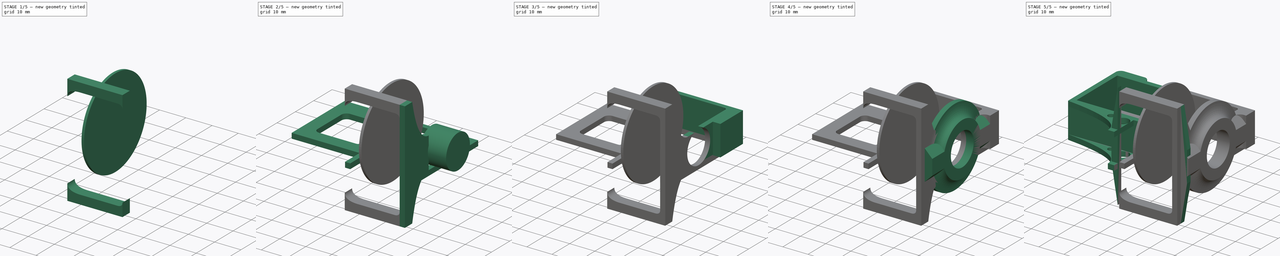
[diagram: build sequence overview — one tinted view per stage of 5, left to right]
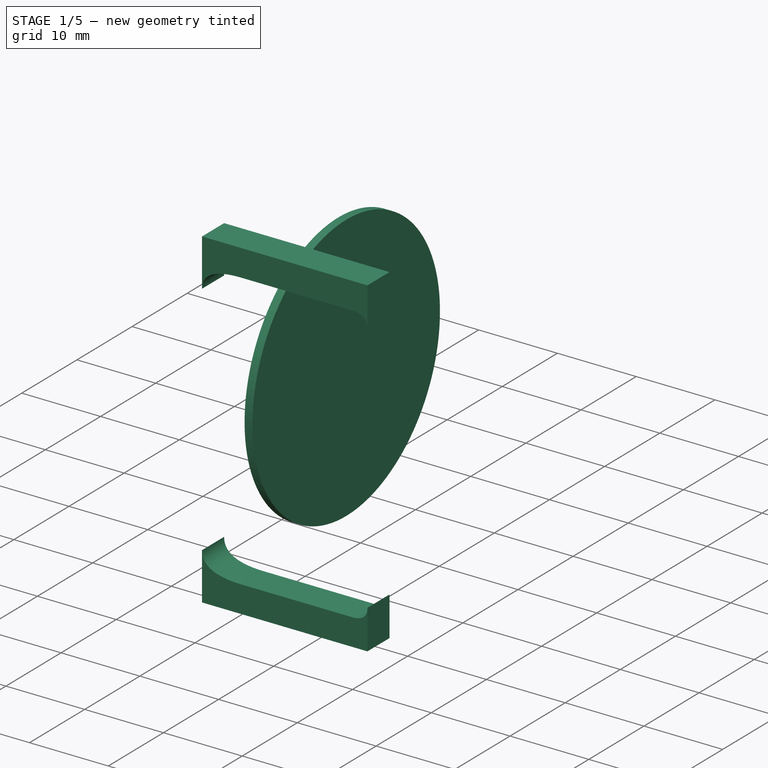
[diagram: stage 1 of 5 — iso view after this stage's code; geometry added in this stage tinted green]
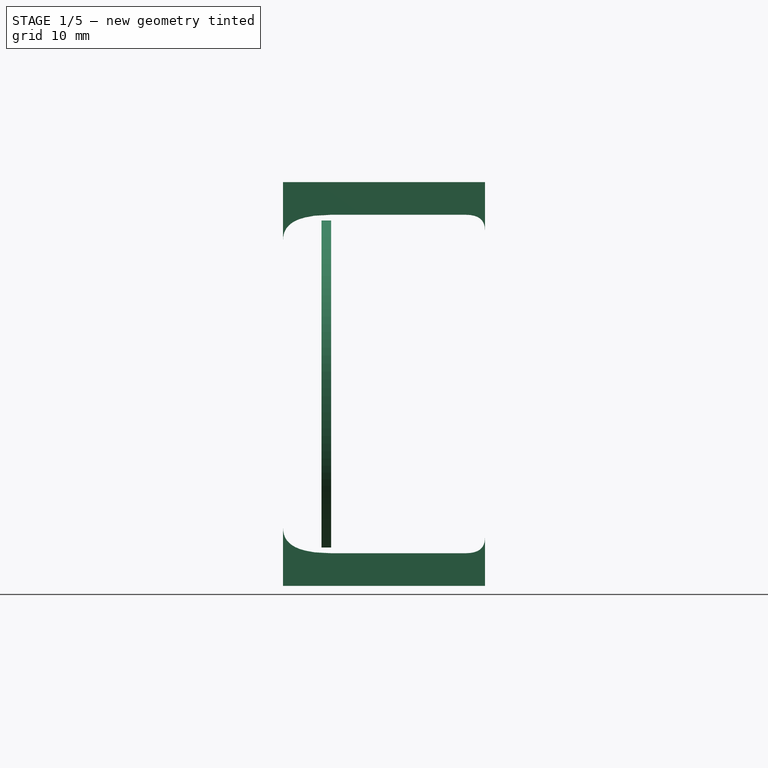
[diagram: stage 1 of 5 — front view after this stage's code; geometry added in this stage tinted green]
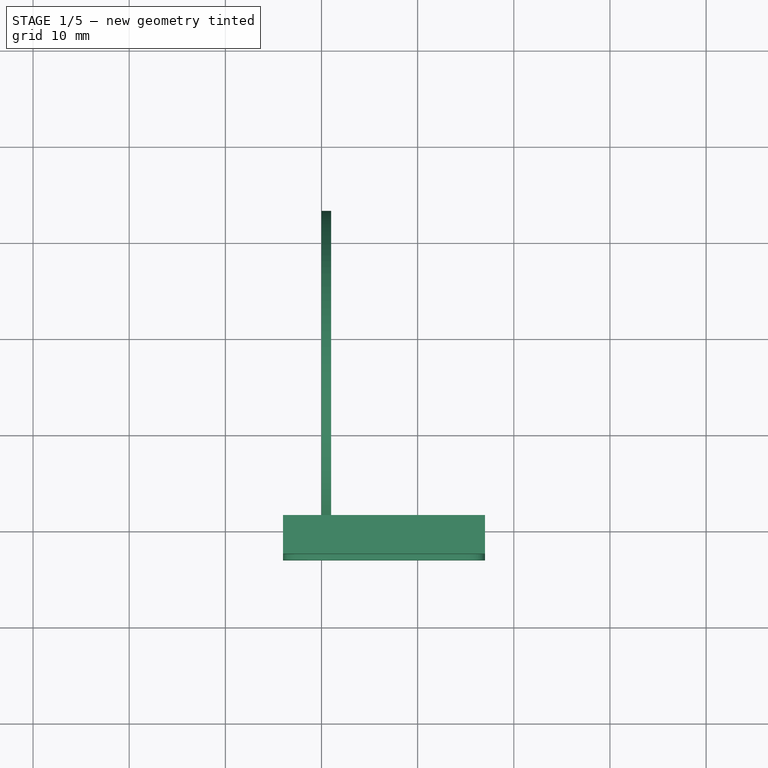
[diagram: stage 1 of 5 — top view after this stage's code; geometry added in this stage tinted green]
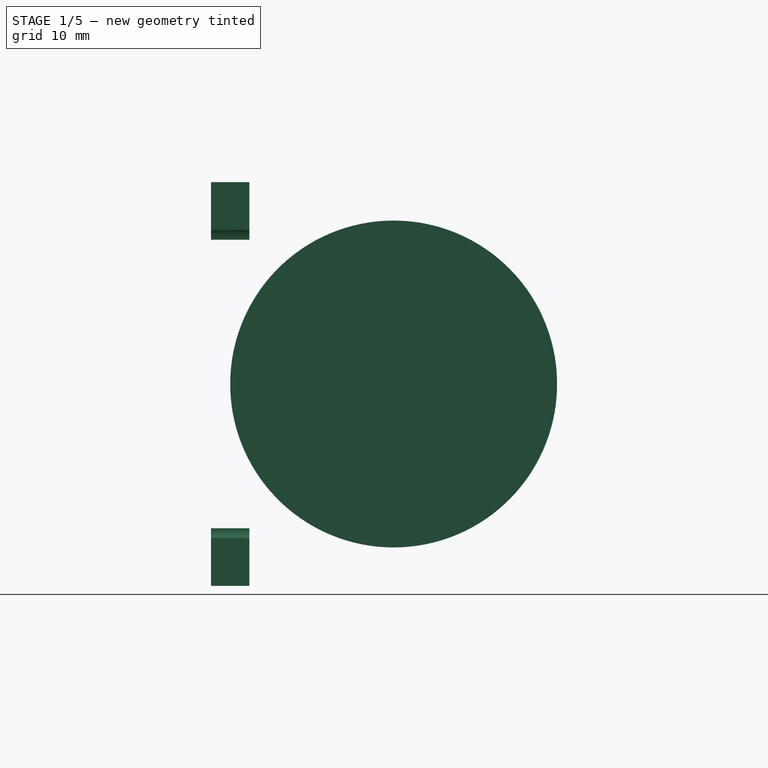
[diagram: stage 1 of 5 — right view after this stage's code; geometry added in this stage tinted green]
FCSTD DOCUMENT  (FreeCAD 0.20R0.20)
Label: 042
License: All rights reserved
LicenseURL: http://en.wikipedia.org/wiki/All_rights_reserved
objects: Sketcher::SketchObject×14, Part::Extrusion×12, Part::Cylinder×4, Part::Cut×4, Part::Chamfer×3, Part::Revolution×2, Part::Box×2
note: 41 computed .brp shape members not serialized (recipe doc carries the construction recipe); baked Part::Feature solids carry a one-line shape summary decoded from their .brp

FEATURE [Sketcher::SketchObject] Sketch012  label="pshasbbCrossBrace"
  FullyConstrained = true
  Placement = pos=(0,0,0) rot=(1,0,0;1.5708rad)
  sketch-geometry (17):
    g0: LineSegment StartX=26 StartY=29 StartZ=0 EndX=26 EndY=23 EndZ=0
    g1: LineSegment StartX=26 StartY=29 StartZ=0 EndX=31 EndY=29 EndZ=0
    g2: Circle CenterX=26 CenterY=23 CenterZ=0 NormalX=0 NormalY=0 NormalZ=1 AngleXU=0 Radius=1
    g3: Circle CenterX=26 CenterY=25.6 CenterZ=0 NormalX=0 NormalY=0 NormalZ=1 AngleXU=0 Radius=1
    g4: Circle CenterX=31 CenterY=25.6 CenterZ=0 NormalX=0 NormalY=0 NormalZ=1 AngleXU=0 Radius=1
    g5: BSplineCurve PolesCount=3 KnotsCount=2 Degree=2 IsPeriodic=0
    g6: GeomPoint X=26 Y=23 Z=0
    g7: GeomPoint X=31 Y=25.6 Z=0
    g8: LineSegment StartX=31 StartY=29 StartZ=0 EndX=47 EndY=29 EndZ=0
    g9: LineSegment StartX=47 StartY=29 StartZ=0 EndX=47 EndY=24 EndZ=0
    g10: LineSegment StartX=31 StartY=25.6 StartZ=0 EndX=45 EndY=25.6 EndZ=0
    g11: Circle CenterX=47 CenterY=24 CenterZ=0 NormalX=0 NormalY=0 NormalZ=1 AngleXU=0 Radius=1
    g12: Circle CenterX=47 CenterY=25.6 CenterZ=0 NormalX=0 NormalY=0 NormalZ=1 AngleXU=0 Radius=1
    g13: Circle CenterX=45 CenterY=25.6 CenterZ=0 NormalX=0 NormalY=0 NormalZ=1 AngleXU=0 Radius=1
    g14: BSplineCurve PolesCount=3 KnotsCount=2 Degree=2 IsPeriodic=0
    g15: GeomPoint X=47 Y=24 Z=0
    g16: GeomPoint X=45 Y=25.6 Z=0
  constraints (36):
    c: Vertical(g0)
    c: Distance(g0) = 6
    c: Horizontal(g1)
    c: Distance(g1) = 5
    c: PointOnObject(g3,g0)
    c: Weight(g2) = 1
    c: Coincident(g5,g0)
    c: Equal(g2,g3)
    c: Equal(g2,g4)
    c: InternalAlignment(g2,g5)
    c: InternalAlignment(g3,g5)
    c: InternalAlignment(g4,g5)
    c: InternalAlignment(g6,g5)
    c: InternalAlignment(g7,g5)
    c: Coincident(g8,g1)
    c: Horizontal(g8)
    c: Distance(g8) = 16
    c: Coincident(g9,g8)
    c: Vertical(g9)
    c: Distance(g9) = 5
    c: Horizontal(g10)
    c: Distance(g10) = 14
    c: PointOnObject(g12,g9)
    c: Weight(g11) = 1
    c: Coincident(g14,g9)
    c: Equal(g11,g12)
    c: Equal(g11,g13)
    c: Coincident(g14,g10)
    c: InternalAlignment(g11,g14)
    c: InternalAlignment(g12,g14)
    c: InternalAlignment(g13,g14)
    c: InternalAlignment(g15,g14)
    c: InternalAlignment(g16,g14)
    c: Block(g10)
    c: Block(g14)
    c: Block(g5)
FEATURE [Part::Extrusion] Extrude010  label="pshasbbCrossBrace001"
  Base = -> Sketch012
  Dir = (0,-1,-3e-16)
  DirMode = 2
  FaceMakerClass = Part::FaceMakerBullseye
  LengthFwd = 4
  LengthRev = 0
  Placement = pos=(0,-9,0) rot=(0,0,1;0rad)
  Solid = true
  Symmetric = false
FEATURE [Sketcher::SketchObject] Sketch013  label="pshasbbCrossBrace003"
  FullyConstrained = true
  Placement = pos=(0,0,0) rot=(1,0,0;1.5708rad)
  sketch-geometry (17):
    g0: LineSegment StartX=26 StartY=29 StartZ=0 EndX=26 EndY=23 EndZ=0
    g1: LineSegment StartX=26 StartY=29 StartZ=0 EndX=31 EndY=29 EndZ=0
    g2: Circle CenterX=26 CenterY=23 CenterZ=0 NormalX=0 NormalY=0 NormalZ=1 AngleXU=0 Radius=1
    g3: Circle CenterX=26 CenterY=25.6 CenterZ=0 NormalX=0 NormalY=0 NormalZ=1 AngleXU=0 Radius=1
    g4: Circle CenterX=31 CenterY=25.6 CenterZ=0 NormalX=0 NormalY=0 NormalZ=1 AngleXU=0 Radius=1
    g5: BSplineCurve PolesCount=3 KnotsCount=2 Degree=2 IsPeriodic=0
    g6: GeomPoint X=26 Y=23 Z=0
    g7: GeomPoint X=31 Y=25.6 Z=0
    g8: LineSegment StartX=31 StartY=29 StartZ=0 EndX=47 EndY=29 EndZ=0
    g9: LineSegment StartX=47 StartY=29 StartZ=0 EndX=47 EndY=24 EndZ=0
    g10: LineSegment StartX=31 StartY=25.6 StartZ=0 EndX=45 EndY=25.6 EndZ=0
    g11: Circle CenterX=47 CenterY=24 CenterZ=0 NormalX=0 NormalY=0 NormalZ=1 AngleXU=0 Radius=1
    g12: Circle CenterX=47 CenterY=25.6 CenterZ=0 NormalX=0 NormalY=0 NormalZ=1 AngleXU=0 Radius=1
    g13: Circle CenterX=45 CenterY=25.6 CenterZ=0 NormalX=0 NormalY=0 NormalZ=1 AngleXU=0 Radius=1
    g14: BSplineCurve PolesCount=3 KnotsCount=2 Degree=2 IsPeriodic=0
    g15: GeomPoint X=47 Y=24 Z=0
    g16: GeomPoint X=45 Y=25.6 Z=0
  constraints (36):
    c: Vertical(g0)
    c: Distance(g0) = 6
    c: Horizontal(g1)
    c: Distance(g1) = 5
    c: PointOnObject(g3,g0)
    c: Weight(g2) = 1
    c: Coincident(g5,g0)
    c: Equal(g2,g3)
    c: Equal(g2,g4)
    c: InternalAlignment(g2,g5)
    c: InternalAlignment(g3,g5)
    c: InternalAlignment(g4,g5)
    c: InternalAlignment(g6,g5)
    c: InternalAlignment(g7,g5)
    c: Coincident(g8,g1)
    c: Horizontal(g8)
    c: Distance(g8) = 16
    c: Coincident(g9,g8)
    c: Vertical(g9)
    c: Distance(g9) = 5
    c: Horizontal(g10)
    c: Distance(g10) = 14
    c: PointOnObject(g12,g9)
    c: Weight(g11) = 1
    c: Coincident(g14,g9)
    c: Equal(g11,g12)
    c: Equal(g11,g13)
    c: Coincident(g14,g10)
    c: InternalAlignment(g11,g14)
    c: InternalAlignment(g12,g14)
    c: InternalAlignment(g13,g14)
    c: InternalAlignment(g15,g14)
    c: InternalAlignment(g16,g14)
    c: Block(g10)
    c: Block(g14)
    c: Block(g5)
FEATURE [Part::Extrusion] Extrude011  label="pshasbbCrossBrace002"
  Base = -> Sketch013
  Dir = (0,-1,-3e-16)
  DirMode = 2
  FaceMakerClass = Part::FaceMakerBullseye
  LengthFwd = 4
  LengthRev = 0
  Placement = pos=(0,-13,16) rot=(1,0,0;3.14159rad)
  Solid = true
  Symmetric = false
FEATURE [Sketcher::SketchObject] Sketch014  label="pully003"
  FullyConstrained = true
  sketch-geometry (15):
    g0: LineSegment StartX=0 StartY=0 StartZ=0 EndX=15 EndY=0 EndZ=0
    g1: LineSegment StartX=0 StartY=0 StartZ=0 EndX=0 EndY=17 EndZ=0
    g2: LineSegment StartX=0 StartY=17 StartZ=0 EndX=0.8 EndY=17 EndZ=0
    g3: LineSegment StartX=15 StartY=17 StartZ=0 EndX=14.2 EndY=17 EndZ=0
    g4: LineSegment StartX=15 StartY=17 StartZ=0 EndX=15 EndY=2.8 EndZ=0
    g5: LineSegment StartX=15 StartY=0 StartZ=0 EndX=21 EndY=0 EndZ=0
    g6: LineSegment StartX=15 StartY=2.8 StartZ=0 EndX=21 EndY=2.8 EndZ=0
    g7: LineSegment StartX=21 StartY=2.8 StartZ=0 EndX=21 EndY=0 EndZ=0
    g8: LineSegment StartX=0 StartY=0 StartZ=0 EndX=7.5 EndY=0 EndZ=0
    g9: Circle CenterX=0.8 CenterY=17 CenterZ=0 NormalX=0 NormalY=0 NormalZ=1 AngleXU=0 Radius=1
    g10: Circle CenterX=7.5 CenterY=-9 CenterZ=0 NormalX=0 NormalY=0 NormalZ=1 AngleXU=0 Radius=1
    g11: Circle CenterX=14.2 CenterY=17 CenterZ=0 NormalX=0 NormalY=0 NormalZ=1 AngleXU=0 Radius=1
    g12: BSplineCurve PolesCount=3 KnotsCount=2 Degree=2 IsPeriodic=0
    g13: GeomPoint X=0.8 Y=17 Z=0
    g14: GeomPoint X=14.2 Y=17 Z=0
  constraints (38):
    c: Coincident(g0,g-1)
    c: PointOnObject(g0,g-1)
    c: Distance(g0) = 15
    c: Coincident(g1,g0)
    c: Vertical(g1)
    c: Distance(g1) = 17
    c: Coincident(g2,g1)
    c: Horizontal(g2)
    c: Distance(g2) = 0.8
    c: Horizontal(g3)
    c: Distance(g3) = 0.8
    c: Coincident(g4,g3)
    c: Vertical(g4)
    c: Coincident(g5,g0)
    c: Horizontal(g5)
    c: Block(g4)
    c: Coincident(g6,g4)
    c: Horizontal(g6)
    c: Distance(g6) = 6
    c: Distance(g5) = 6
    c: Coincident(g7,g6)
    c: Coincident(g7,g5)
    c: Vertical(g7)
    c: Distance(g7) = 2.8
    c: Horizontal(g8)
    c: Distance(g8) = 7.5
    c: Coincident(g8,g0)
    c: Weight(g9) = 1
    c: Coincident(g12,g2)
    c: Equal(g9,g10)
    c: Equal(g9,g11)
    c: Coincident(g12,g3)
    c: InternalAlignment(g9,g12)
    c: InternalAlignment(g10,g12)
    c: InternalAlignment(g11,g12)
    c: InternalAlignment(g13,g12)
    c: InternalAlignment(g14,g12)
    c: Block(g12)
FEATURE [Part::Revolution] Revolve002  label="pully"
  Angle = 360
  Axis = (1,0,0)
  Base = (0,0,0)
  FaceMakerClass = Part::FaceMakerBullseye
  Placement = pos=(31,6,8) rot=(0,0,1;0rad)
  Solid = false
  Source = -> Sketch014
  Symmetric = false
FEATURE [Part::Chamfer] Chamfer  label="pully004"
  Base = -> Revolve002
  Edges = 2 edges r=0.5: [Edge2,Edge8]
FEATURE [Sketcher::SketchObject] Sketch016
  FullyConstrained = true
  Placement = pos=(0,0,0) rot=(0.57735,0.57735,0.57735;2.0944rad)
  sketch-geometry (6):
    g0: Circle CenterX=0 CenterY=0 CenterZ=0 NormalX=0 NormalY=0 NormalZ=1 AngleXU=0 Radius=2.36
    g1: Circle CenterX=0 CenterY=6.5 CenterZ=0 NormalX=0 NormalY=0 NormalZ=1 AngleXU=0 Radius=2
    g2: Circle CenterX=0 CenterY=-6.5 CenterZ=0 NormalX=0 NormalY=0 NormalZ=1 AngleXU=0 Radius=2
    g3: Circle CenterX=0 CenterY=0 CenterZ=0 NormalX=0 NormalY=0 NormalZ=1 AngleXU=0 Radius=11
    g4: Circle CenterX=-6.5 CenterY=0 CenterZ=0 NormalX=0 NormalY=0 NormalZ=1 AngleXU=0 Radius=2
    g5: Circle CenterX=6.5 CenterY=0 CenterZ=0 NormalX=0 NormalY=0 NormalZ=1 AngleXU=0 Radius=2
  constraints (7):
    c: Block(g0)
    c: Block(g2)
    c: Block(g1)
    c: Coincident(g3,g0)
    c: Block(g3)
    c: Block(g5)
    c: Block(g4)
FEATURE [Part::Extrusion] Extrude012  label="removeToCreatePullyServoMount"
  Base = -> Sketch016
  Dir = (1,0,0)
  DirMode = 2
  FaceMakerClass = Part::FaceMakerBullseye
  LengthFwd = 1
  LengthRev = 0
  Placement = pos=(29.99,6,8) rot=(0,0,1;0rad)
  Solid = true
  Symmetric = false
FEATURE [Part::Cylinder] Cylinder003  label="Cylinder"
  Angle = 360
  AttacherType = Attacher::AttachEngine3D
  FirstAngle = 0
  Height = 1
  Placement = pos=(30,6,8) rot=(0,1,0;1.5708rad)
  Radius = 17
  SecondAngle = 0
FEATURE [Part::Cut] Cut003
  Base = -> Cylinder003
  Tool = -> Extrude012
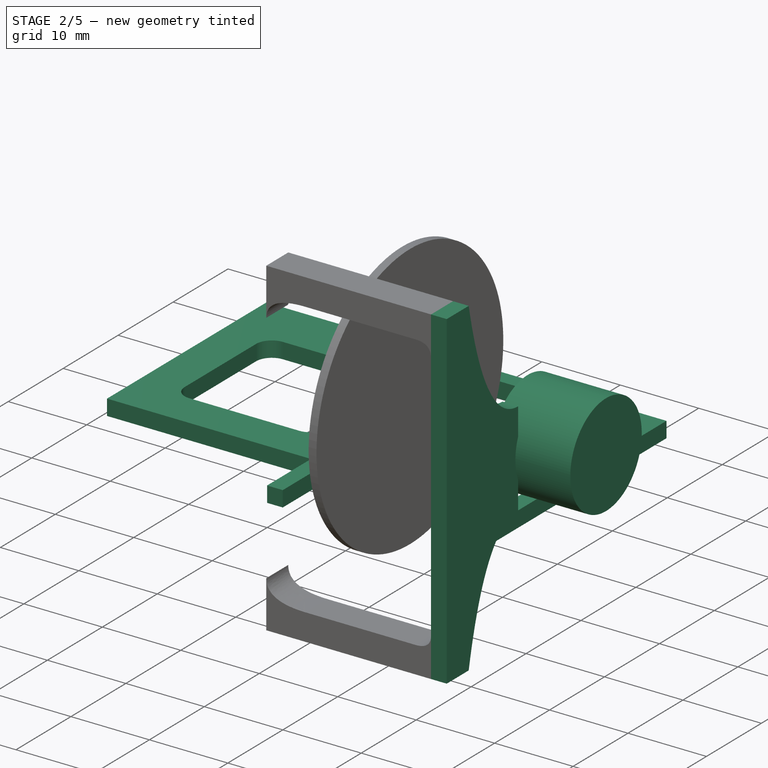
[diagram: stage 2 of 5 — iso view after this stage's code; geometry added in this stage tinted green]
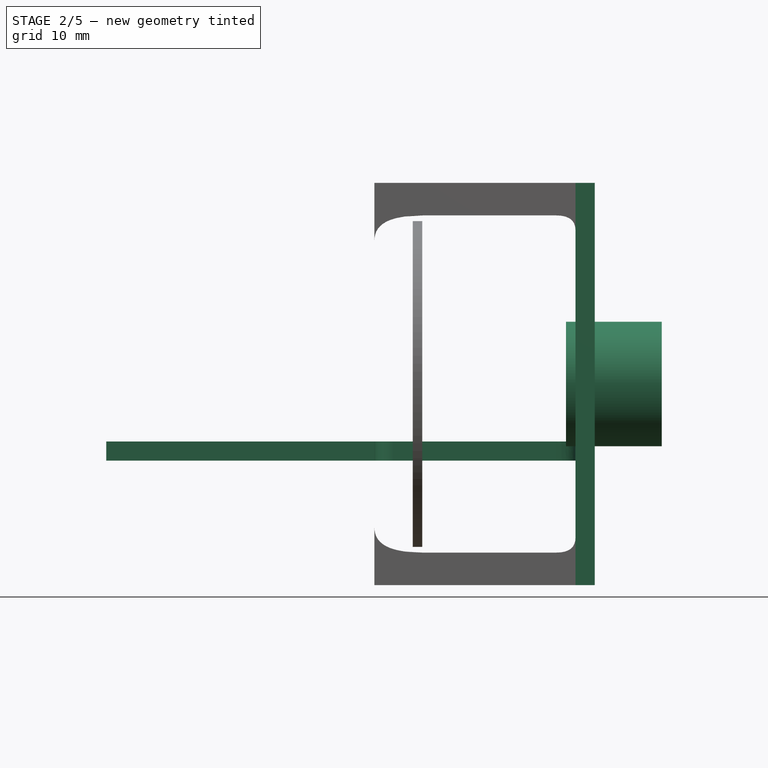
[diagram: stage 2 of 5 — front view after this stage's code; geometry added in this stage tinted green]
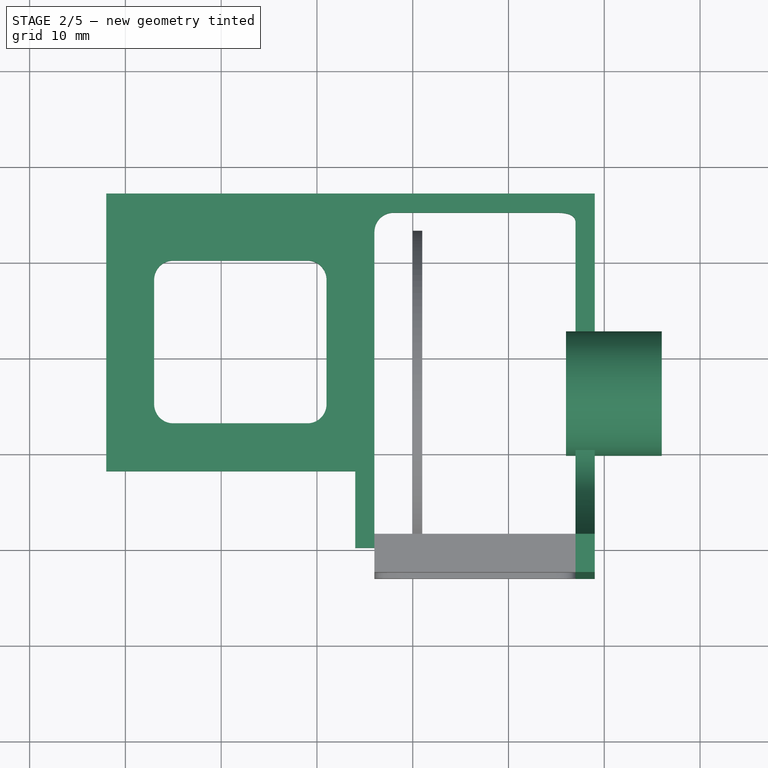
[diagram: stage 2 of 5 — top view after this stage's code; geometry added in this stage tinted green]
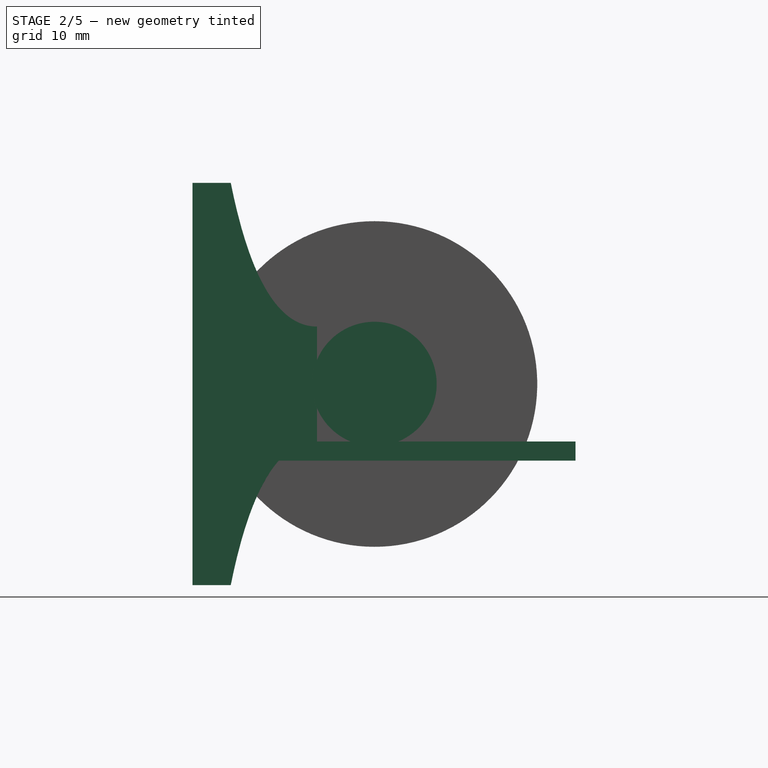
[diagram: stage 2 of 5 — right view after this stage's code; geometry added in this stage tinted green]
FEATURE [Sketcher::SketchObject] Sketch001  label="servoHolderBase"
  FullyConstrained = true
  sketch-geometry (27):
    g0: LineSegment StartX=-2 StartY=-2 StartZ=0 EndX=-2 EndY=25 EndZ=0
    g1: LineSegment StartX=-2 StartY=25 StartZ=0 EndX=-2 EndY=27 EndZ=0
    g2: LineSegment StartX=49 StartY=-13 StartZ=0 EndX=49 EndY=27 EndZ=0
    g3: Circle CenterX=47 CenterY=24 CenterZ=0 NormalX=0 NormalY=0 NormalZ=1 AngleXU=0 Radius=1
    g4: Circle CenterX=47 CenterY=25 CenterZ=0 NormalX=0 NormalY=0 NormalZ=1 AngleXU=0 Radius=1
    g5: Circle CenterX=45 CenterY=25 CenterZ=0 NormalX=0 NormalY=0 NormalZ=1 AngleXU=0 Radius=1
    g6: BSplineCurve PolesCount=3 KnotsCount=2 Degree=2 IsPeriodic=0
    g7: GeomPoint X=47 Y=24 Z=0
    g8: GeomPoint X=45 Y=25 Z=0
    g9: ArcOfCircle CenterX=28 CenterY=23 CenterZ=0 NormalX=0 NormalY=0 NormalZ=1 AngleXU=0 Radius=2 StartAngle=1.5708 EndAngle=3.14159
    g10: LineSegment StartX=45 StartY=25 StartZ=0 EndX=28 EndY=25 EndZ=0
    g11: LineSegment StartX=47 StartY=24 StartZ=0 EndX=47 EndY=-13 EndZ=0
    g12: LineSegment StartX=49 StartY=27 StartZ=0 EndX=-2 EndY=27 EndZ=0
    g13: LineSegment StartX=24 StartY=-2 StartZ=0 EndX=-2 EndY=-2 EndZ=0
    g14: LineSegment StartX=47 StartY=-13 StartZ=0 EndX=49 EndY=-13 EndZ=0
    g15: LineSegment StartX=26 StartY=2 StartZ=0 EndX=26 EndY=23 EndZ=0
    g16: ArcOfCircle CenterX=5 CenterY=18 CenterZ=0 NormalX=0 NormalY=0 NormalZ=1 AngleXU=0 Radius=2 StartAngle=1.5708 EndAngle=3.14159
    g17: ArcOfCircle CenterX=5 CenterY=5 CenterZ=0 NormalX=0 NormalY=0 NormalZ=1 AngleXU=0 Radius=2 StartAngle=3.14159 EndAngle=4.71239
    g18: ArcOfCircle CenterX=19 CenterY=5 CenterZ=0 NormalX=0 NormalY=0 NormalZ=1 AngleXU=0 Radius=2 StartAngle=4.71239 EndAngle=6.28319
    g19: ArcOfCircle CenterX=19 CenterY=18 CenterZ=0 NormalX=0 NormalY=0 NormalZ=1 AngleXU=0 Radius=2 StartAngle=0 EndAngle=1.5708
    g20: LineSegment StartX=3 StartY=18 StartZ=0 EndX=3 EndY=5 EndZ=0
    g21: LineSegment StartX=5 StartY=3 StartZ=0 EndX=19 EndY=3 EndZ=0
    g22: LineSegment StartX=21 StartY=5 StartZ=0 EndX=21 EndY=18 EndZ=0
    g23: LineSegment StartX=5 StartY=20 StartZ=0 EndX=19 EndY=20 EndZ=0
    g24: LineSegment StartX=26 StartY=2 StartZ=0 EndX=26 EndY=-10 EndZ=0
    g25: LineSegment StartX=26 StartY=-10 StartZ=0 EndX=24 EndY=-10 EndZ=0
    g26: LineSegment StartX=24 StartY=-10 StartZ=0 EndX=24 EndY=-2 EndZ=0
  constraints (61):
    c: Vertical(g0)
    c: Distance(g0) = 27
    c: Coincident(g1,g0)
    c: Vertical(g1)
    c: Distance(g1) = 2
    c: Vertical(g2)
    c: Block(g2)
    c: Weight(g3) = 1
    c: Equal(g3,g4)
    c: Equal(g3,g5)
    c: InternalAlignment(g3,g6)
    c: InternalAlignment(g4,g6)
    c: InternalAlignment(g5,g6)
    c: InternalAlignment(g7,g6)
    c: InternalAlignment(g8,g6)
    c: Block(g6)
    c: Block(g9)
    c: Coincident(g10,g6)
    c: Coincident(g10,g9)
    c: Horizontal(g10)
    c: Coincident(g11,g6)
    c: Vertical(g11)
    c: Coincident(g12,g2)
    c: Coincident(g12,g1)
    c: Horizontal(g12)
    c: Coincident(g13,g0)
    c: Horizontal(g13)
    c: Block(g13)
    c: Block(g11)
    c: Coincident(g14,g11)
    c: Coincident(g14,g2)
    c: Horizontal(g14)
    c: Coincident(g15,g9)
    c: Vertical(g15)
    c: Block(g16)
    c: Coincident(g20,g16)
    c: Coincident(g20,g17)
    c: Vertical(g20)
    c: Coincident(g21,g17)
    c: Coincident(g21,g18)
    c: Horizontal(g21)
    c: Coincident(g22,g18)
    c: Coincident(g22,g19)
    c: Vertical(g22)
    c: Coincident(g23,g16)
    c: Coincident(g23,g19)
    c: Horizontal(g23)
    c: Block(g18)
    c: Block(g17)
    c: Block(g22)
    c: Block(g23)
    c: Block(g19)
    c: Vertical(g24)
    c: Block(g15)
    c: Block(g24)
    c: Coincident(g25,g24)
    c: Horizontal(g25)
    c: Distance(g25) = 2
    c: Coincident(g26,g25)
    c: Vertical(g26)
    c: Coincident(g13,g26)
FEATURE [Part::Extrusion] Extrude001  label="servoHolderBase001"
  Base = -> Sketch001
  Dir = (0,0,1)
  DirMode = 2
  FaceMakerClass = Part::FaceMakerBullseye
  LengthFwd = 2
  LengthRev = 0
  Solid = true
  Symmetric = false
FEATURE [Sketcher::SketchObject] Sketch004  label="pullyServoHolderAndSprintBarrierBrace"
  FullyConstrained = true
  Placement = pos=(0,0,0) rot=(0.57735,0.57735,0.57735;2.0944rad)
  sketch-geometry (19):
    g0: LineSegment StartX=-13 StartY=25 StartZ=0 EndX=-13 EndY=-9 EndZ=0
    g1: LineSegment StartX=0 StartY=14 StartZ=0 EndX=0 EndY=8 EndZ=0
    g2: LineSegment StartX=0 StartY=8 StartZ=0 EndX=0 EndY=2 EndZ=0
    g3: LineSegment StartX=-13 StartY=-9 StartZ=0 EndX=-13 EndY=-13 EndZ=0
    g4: LineSegment StartX=-13 StartY=25 StartZ=0 EndX=-13 EndY=29 EndZ=0
    g5: LineSegment StartX=-13 StartY=29 StartZ=0 EndX=-9 EndY=29 EndZ=0
    g6: LineSegment StartX=-13 StartY=-13 StartZ=0 EndX=-9 EndY=-13 EndZ=0
    g7: Circle CenterX=0 CenterY=2 CenterZ=0 NormalX=0 NormalY=0 NormalZ=1 AngleXU=0 Radius=1
    g8: Circle CenterX=-6 CenterY=2 CenterZ=0 NormalX=0 NormalY=0 NormalZ=1 AngleXU=0 Radius=1
    g9: Circle CenterX=-9 CenterY=-13 CenterZ=0 NormalX=0 NormalY=0 NormalZ=1 AngleXU=0 Radius=1
    g10: BSplineCurve PolesCount=3 KnotsCount=2 Degree=2 IsPeriodic=0
    g11: GeomPoint X=0 Y=2 Z=0
    g12: GeomPoint X=-9 Y=-13 Z=0
    g13: Circle CenterX=0 CenterY=14 CenterZ=0 NormalX=0 NormalY=0 NormalZ=1 AngleXU=0 Radius=1
    g14: Circle CenterX=-6 CenterY=14 CenterZ=0 NormalX=0 NormalY=0 NormalZ=1 AngleXU=0 Radius=1
    g15: Circle CenterX=-9 CenterY=29 CenterZ=0 NormalX=0 NormalY=0 NormalZ=1 AngleXU=0 Radius=1
    g16: BSplineCurve PolesCount=3 KnotsCount=2 Degree=2 IsPeriodic=0
    g17: GeomPoint X=0 Y=14 Z=0
    g18: GeomPoint X=-9 Y=29 Z=0
  constraints (43):
    c: Vertical(g0)
    c: Distance(g0) = 34
    c: Vertical(g1)
    c: Distance(g1) = 6
    c: Coincident(g2,g1)
    c: Vertical(g2)
    c: Distance(g2) = 6
    c: Block(g0)
    c: Block(g2)
    c: Coincident(g3,g0)
    c: Vertical(g3)
    c: Distance(g3) = 4
    c: Coincident(g4,g0)
    c: Vertical(g4)
    c: Distance(g4) = 4
    c: Coincident(g5,g4)
    c: Horizontal(g5)
    c: Coincident(g6,g3)
    c: Horizontal(g6)
    c: Distance(g6) = 4
    c: Distance(g5) = 4
    c: Weight(g7) = 1
    c: Coincident(g10,g2)
    c: Equal(g7,g8)
    c: Equal(g7,g9)
    c: Coincident(g10,g6)
    c: InternalAlignment(g7,g10)
    c: InternalAlignment(g8,g10)
    c: InternalAlignment(g9,g10)
    c: InternalAlignment(g11,g10)
    c: InternalAlignment(g12,g10)
    c: Weight(g13) = 1
    c: Coincident(g16,g1)
    c: Equal(g13,g14)
    c: Equal(g13,g15)
    c: Coincident(g16,g5)
    c: InternalAlignment(g13,g16)
    c: InternalAlignment(g14,g16)
    c: InternalAlignment(g15,g16)
    c: InternalAlignment(g17,g16)
    c: InternalAlignment(g18,g16)
    c: Block(g16)
    c: Block(g10)
FEATURE [Part::Extrusion] Extrude003  label="pullyServoHolderAndSprintBarrierBrace001"
  Base = -> Sketch004
  Dir = (1,0,0)
  DirMode = 2
  FaceMakerClass = Part::FaceMakerBullseye
  LengthFwd = 2
  LengthRev = 0
  Placement = pos=(47,0,0) rot=(0,0,1;0rad)
  Solid = true
  Symmetric = false
FEATURE [Part::Cylinder] Cylinder001  label="removeToCreateHoleForBearing001"
  Angle = 360
  AttacherType = Attacher::AttachEngine3D
  FirstAngle = 0
  Height = 10
  Placement = pos=(46,6,8) rot=(0,1,0;1.5708rad)
  Radius = 6.5
  SecondAngle = 0
FEATURE [Part::Cylinder] Cylinder002  label="removeToCreateHoleForBearing002"
  Angle = 360
  AttacherType = Attacher::AttachEngine3D
  FirstAngle = 0
  Height = 10
  Placement = pos=(46,6,8) rot=(0,1,0;1.5708rad)
  Radius = 6.5
  SecondAngle = 0
FEATURE [Part::Cut] Cut002  label="pullyServoHolderAndSprintBarrierBrace004"
  Base = -> Extrude003
  Tool = -> Cylinder002
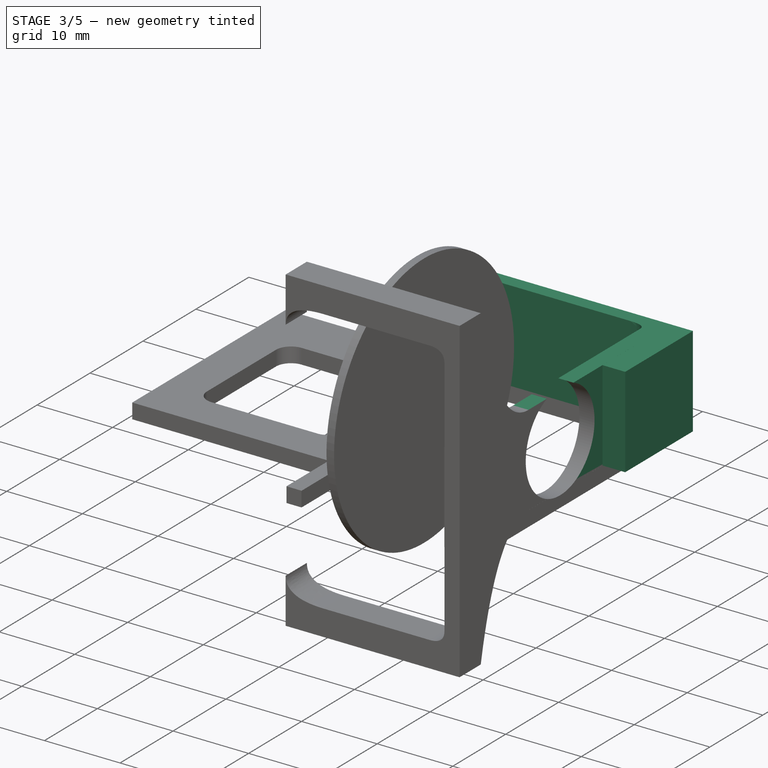
[diagram: stage 3 of 5 — iso view after this stage's code; geometry added in this stage tinted green]
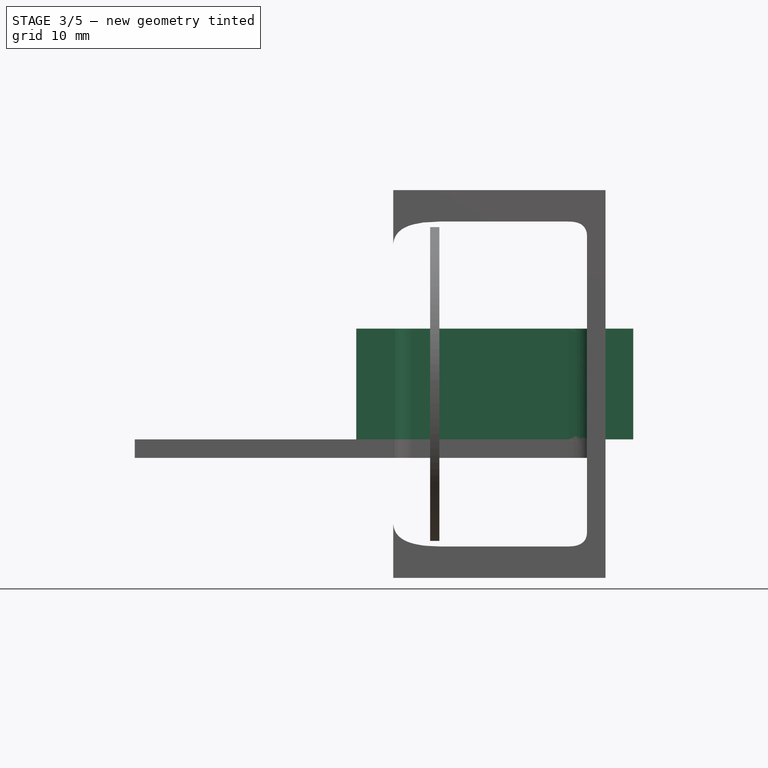
[diagram: stage 3 of 5 — front view after this stage's code; geometry added in this stage tinted green]
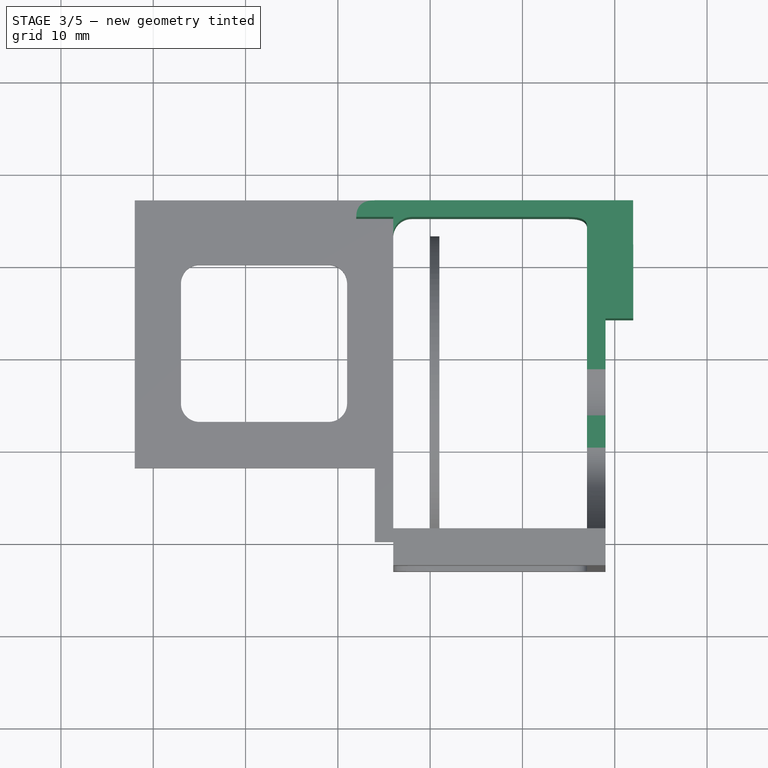
[diagram: stage 3 of 5 — top view after this stage's code; geometry added in this stage tinted green]
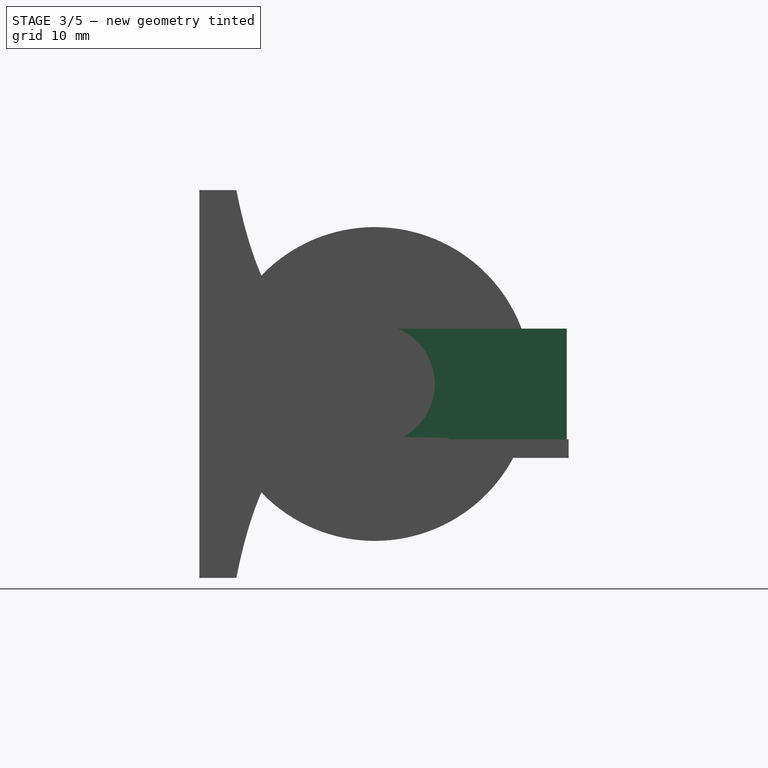
[diagram: stage 3 of 5 — right view after this stage's code; geometry added in this stage tinted green]
FEATURE [Sketcher::SketchObject] Sketch003  label="pullyHolderAndSprintBarrier"
  FullyConstrained = true
  sketch-geometry (23):
    g0: Circle CenterX=21.9972 CenterY=25 CenterZ=0 NormalX=0 NormalY=0 NormalZ=1 AngleXU=0 Radius=1
    g1: Circle CenterX=21.9972 CenterY=26.8 CenterZ=0 NormalX=0 NormalY=0 NormalZ=1 AngleXU=0 Radius=1
    g2: Circle CenterX=23.9972 CenterY=26.8 CenterZ=0 NormalX=0 NormalY=0 NormalZ=1 AngleXU=0 Radius=1
    g3: BSplineCurve PolesCount=3 KnotsCount=2 Degree=2 IsPeriodic=0
    g4: GeomPoint X=21.9972 Y=25 Z=0
    g5: GeomPoint X=23.9972 Y=26.8 Z=0
    g6: ArcOfCircle CenterX=27.9972 CenterY=23 CenterZ=0 NormalX=0 NormalY=0 NormalZ=1 AngleXU=0 Radius=2 StartAngle=1.5708 EndAngle=3.14159
    g7: Circle CenterX=44.9972 CenterY=25 CenterZ=0 NormalX=0 NormalY=0 NormalZ=1 AngleXU=0 Radius=1
    g8: Circle CenterX=46.9972 CenterY=25 CenterZ=0 NormalX=0 NormalY=0 NormalZ=1 AngleXU=0 Radius=1
    g9: Circle CenterX=46.9972 CenterY=24 CenterZ=0 NormalX=0 NormalY=0 NormalZ=1 AngleXU=0 Radius=1
    g10: BSplineCurve PolesCount=3 KnotsCount=2 Degree=2 IsPeriodic=0
    g11: GeomPoint X=44.9972 Y=25 Z=0
    g12: GeomPoint X=46.9972 Y=24 Z=0
    g13: LineSegment StartX=46.9972 StartY=-13 StartZ=0 EndX=48.9972 EndY=-13 EndZ=0
    g14: LineSegment StartX=23.9972 StartY=26.8 StartZ=0 EndX=51.9972 EndY=26.8 EndZ=0
    g15: LineSegment StartX=21.9972 StartY=25 StartZ=0 EndX=25.9972 EndY=25 EndZ=0
    g16: LineSegment StartX=25.9972 StartY=25 StartZ=0 EndX=25.9972 EndY=23 EndZ=0
    g17: LineSegment StartX=44.9972 StartY=25 StartZ=0 EndX=27.9972 EndY=25 EndZ=0
    g18: LineSegment StartX=46.9972 StartY=24 StartZ=0 EndX=46.9972 EndY=-13 EndZ=0
    g19: LineSegment StartX=51.9972 StartY=26.8 StartZ=0 EndX=51.9972 EndY=21.8 EndZ=0
    g20: ArcOfCircle CenterX=50.9972 CenterY=19.8 CenterZ=0 NormalX=0 NormalY=0 NormalZ=1 AngleXU=0 Radius=2 StartAngle=1.5708 EndAngle=3.14159
    g21: LineSegment StartX=50.9972 StartY=21.8 StartZ=0 EndX=51.9972 EndY=21.8 EndZ=0
    g22: LineSegment StartX=48.9972 StartY=19.8 StartZ=0 EndX=48.9972 EndY=-13 EndZ=0
  constraints (46):
    c: Weight(g0) = 1
    c: Equal(g0,g1)
    c: Equal(g0,g2)
    c: InternalAlignment(g0,g3)
    c: InternalAlignment(g1,g3)
    c: InternalAlignment(g2,g3)
    c: InternalAlignment(g4,g3)
    c: InternalAlignment(g5,g3)
    c: Block(g3)
    c: Block(g6)
    c: Weight(g7) = 1
    c: Equal(g7,g8)
    c: Equal(g7,g9)
    c: InternalAlignment(g7,g10)
    c: InternalAlignment(g8,g10)
    c: InternalAlignment(g9,g10)
    c: InternalAlignment(g11,g10)
    c: InternalAlignment(g12,g10)
    c: Block(g10)
    c: Horizontal(g13)
    c: Coincident(g14,g3)
    c: Horizontal(g14)
    c: Block(g14)
    c: Coincident(g15,g3)
    c: Horizontal(g15)
    c: Block(g15)
    c: Coincident(g16,g15)
    c: Coincident(g16,g6)
    c: Vertical(g16)
    c: Coincident(g17,g10)
    c: Coincident(g17,g6)
    c: Horizontal(g17)
    c: Coincident(g18,g10)
    c: Coincident(g18,g13)
    c: Vertical(g18)
    c: Block(g13)
    c: Coincident(g19,g14)
    c: Vertical(g19)
    c: Block(g20)
    c: Block(g19)
    c: Coincident(g21,g20)
    c: Coincident(g21,g19)
    c: Horizontal(g21)
    c: Coincident(g22,g20)
    c: Coincident(g22,g13)
    c: Vertical(g22)
FEATURE [Part::Extrusion] Extrude002  label="pullyHolderAndSprintBarrier001"
  Base = -> Sketch003
  Dir = (0,0,1)
  DirMode = 2
  FaceMakerClass = Part::FaceMakerBullseye
  LengthFwd = 12
  LengthRev = 0
  Placement = pos=(0,0,2) rot=(0,0,1;0rad)
  Solid = true
  Symmetric = false
FEATURE [Part::Box] Box001  label="reenforcement003"
  AttacherType = Attacher::AttachEngine3D
  Height = 12
  Length = 3
  Placement = pos=(49,14,2) rot=(0,0,1;0rad)
  Width = 8
FEATURE [Part::Cylinder] Cylinder  label="removeToCreateHoleForBearing"
  Angle = 360
  AttacherType = Attacher::AttachEngine3D
  FirstAngle = 0
  Height = 10
  Placement = pos=(46,6,8) rot=(0,1,0;1.5708rad)
  Radius = 6.5
  SecondAngle = 0
FEATURE [Part::Cut] Cut  label="pullyHolderAndSprintBarrier002"
  Base = -> Extrude002
  Tool = -> Cylinder
FEATURE [Part::Cut] Cut001  label="servoHolderBase002"
  Base = -> Extrude001
  Tool = -> Cylinder001
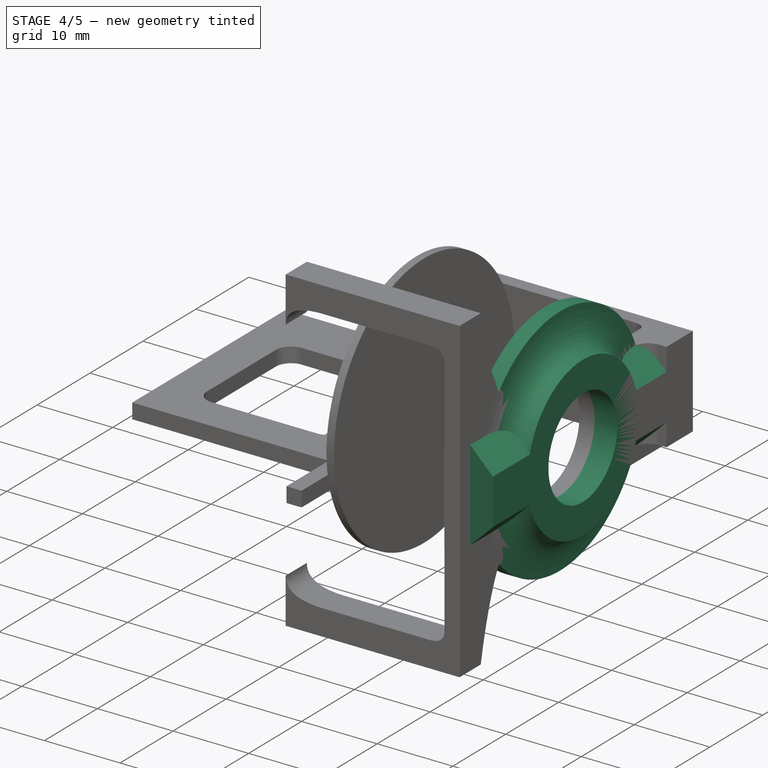
[diagram: stage 4 of 5 — iso view after this stage's code; geometry added in this stage tinted green]
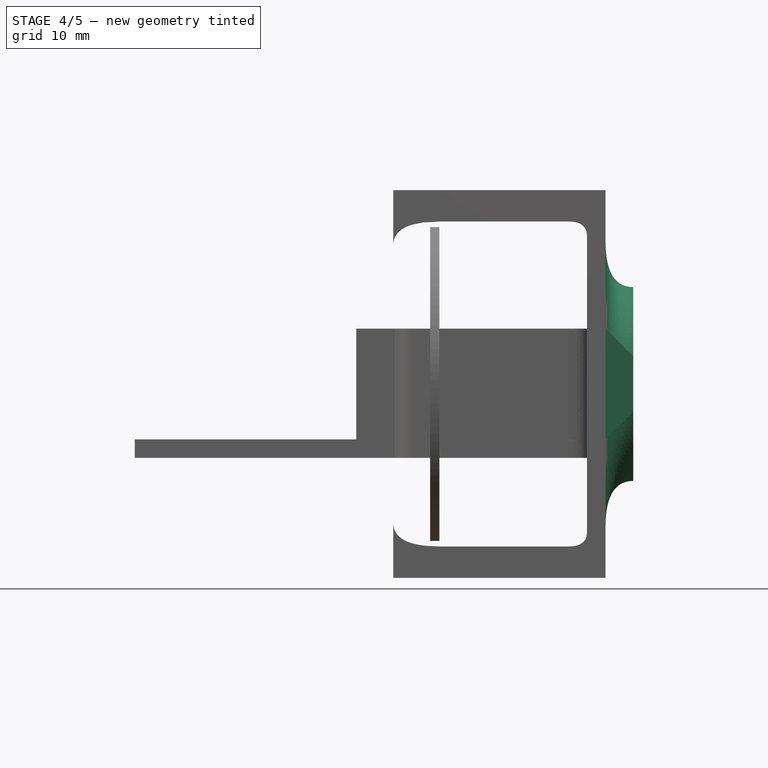
[diagram: stage 4 of 5 — front view after this stage's code; geometry added in this stage tinted green]
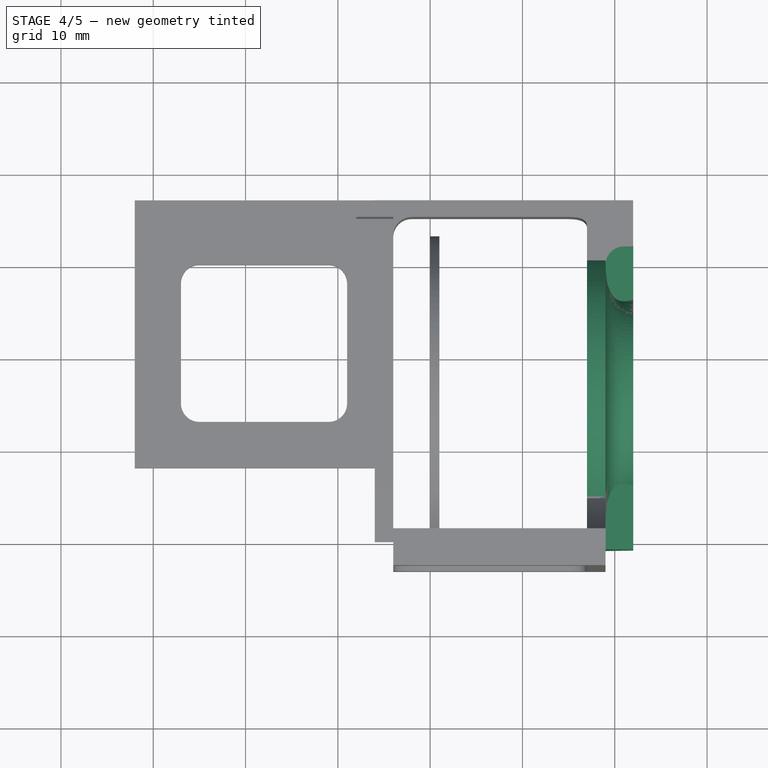
[diagram: stage 4 of 5 — top view after this stage's code; geometry added in this stage tinted green]
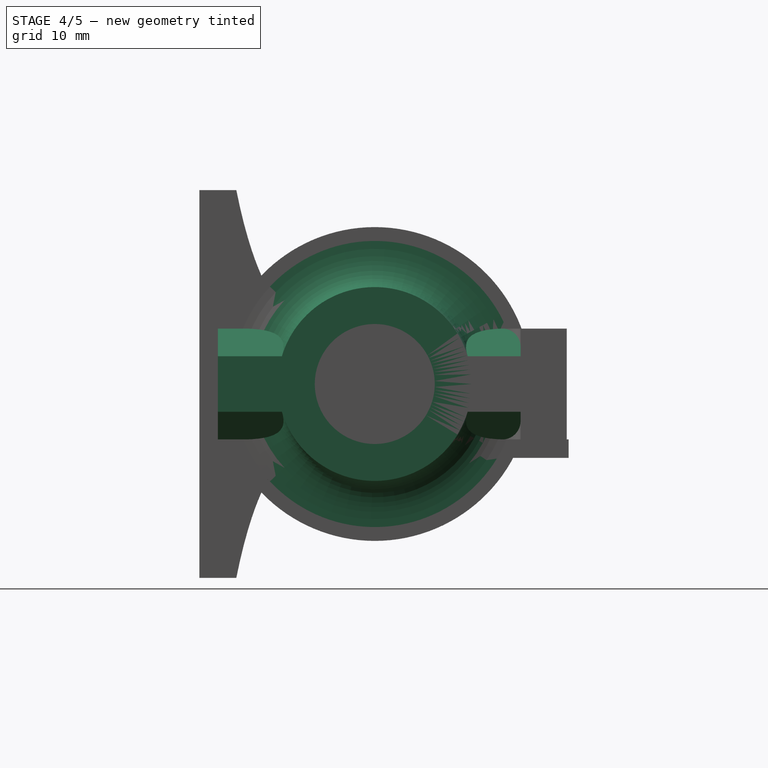
[diagram: stage 4 of 5 — right view after this stage's code; geometry added in this stage tinted green]
FEATURE [Sketcher::SketchObject] Sketch005  label="pullyServoHolderAndSprintBarrierBrace003"
  FullyConstrained = true
  Placement = pos=(0,0,0) rot=(0.57735,0.57735,0.57735;2.0944rad)
  sketch-geometry (19):
    g0: LineSegment StartX=-13 StartY=25 StartZ=0 EndX=-13 EndY=-9 EndZ=0
    g1: LineSegment StartX=0 StartY=14 StartZ=0 EndX=0 EndY=8 EndZ=0
    g2: LineSegment StartX=0 StartY=8 StartZ=0 EndX=0 EndY=2 EndZ=0
    g3: LineSegment StartX=-13 StartY=-9 StartZ=0 EndX=-13 EndY=-13 EndZ=0
    g4: LineSegment StartX=-13 StartY=25 StartZ=0 EndX=-13 EndY=29 EndZ=0
    g5: LineSegment StartX=-13 StartY=29 StartZ=0 EndX=-9 EndY=29 EndZ=0
    g6: LineSegment StartX=-13 StartY=-13 StartZ=0 EndX=-9 EndY=-13 EndZ=0
    g7: Circle CenterX=0 CenterY=2 CenterZ=0 NormalX=0 NormalY=0 NormalZ=1 AngleXU=0 Radius=1
    g8: Circle CenterX=-6 CenterY=2 CenterZ=0 NormalX=0 NormalY=0 NormalZ=1 AngleXU=0 Radius=1
    g9: Circle CenterX=-9 CenterY=-13 CenterZ=0 NormalX=0 NormalY=0 NormalZ=1 AngleXU=0 Radius=1
    g10: BSplineCurve PolesCount=3 KnotsCount=2 Degree=2 IsPeriodic=0
    g11: GeomPoint X=0 Y=2 Z=0
    g12: GeomPoint X=-9 Y=-13 Z=0
    g13: Circle CenterX=0 CenterY=14 CenterZ=0 NormalX=0 NormalY=0 NormalZ=1 AngleXU=0 Radius=1
    g14: Circle CenterX=-6 CenterY=14 CenterZ=0 NormalX=0 NormalY=0 NormalZ=1 AngleXU=0 Radius=1
    g15: Circle CenterX=-9 CenterY=29 CenterZ=0 NormalX=0 NormalY=0 NormalZ=1 AngleXU=0 Radius=1
    g16: BSplineCurve PolesCount=3 KnotsCount=2 Degree=2 IsPeriodic=0
    g17: GeomPoint X=0 Y=14 Z=0
    g18: GeomPoint X=-9 Y=29 Z=0
  constraints (43):
    c: Vertical(g0)
    c: Distance(g0) = 34
    c: Vertical(g1)
    c: Distance(g1) = 6
    c: Coincident(g2,g1)
    c: Vertical(g2)
    c: Distance(g2) = 6
    c: Block(g0)
    c: Block(g2)
    c: Coincident(g3,g0)
    c: Vertical(g3)
    c: Distance(g3) = 4
    c: Coincident(g4,g0)
    c: Vertical(g4)
    c: Distance(g4) = 4
    c: Coincident(g5,g4)
    c: Horizontal(g5)
    c: Coincident(g6,g3)
    c: Horizontal(g6)
    c: Distance(g6) = 4
    c: Distance(g5) = 4
    c: Weight(g7) = 1
    c: Coincident(g10,g2)
    c: Equal(g7,g8)
    c: Equal(g7,g9)
    c: Coincident(g10,g6)
    c: InternalAlignment(g7,g10)
    c: InternalAlignment(g8,g10)
    c: InternalAlignment(g9,g10)
    c: InternalAlignment(g11,g10)
    c: InternalAlignment(g12,g10)
    c: Weight(g13) = 1
    c: Coincident(g16,g1)
    c: Equal(g13,g14)
    c: Equal(g13,g15)
    c: Coincident(g16,g5)
    c: InternalAlignment(g13,g16)
    c: InternalAlignment(g14,g16)
    c: InternalAlignment(g15,g16)
    c: InternalAlignment(g17,g16)
    c: InternalAlignment(g18,g16)
    c: Block(g16)
    c: Block(g10)
FEATURE [Part::Extrusion] Extrude004  label="pullyServoHolderAndSprintBarrierBrace002"
  Base = -> Sketch005
  Dir = (1,0,0)
  DirMode = 2
  FaceMakerClass = Part::FaceMakerBullseye
  LengthFwd = 2
  LengthRev = 0
  Placement = pos=(24,0,0) rot=(0,0,1;0rad)
  Solid = true
  Symmetric = false
FEATURE [Sketcher::SketchObject] Sketch011  label="bearingHolder"
  AttachmentOffset = pos=(0,0,0) rot=(1,0,0;1.5708rad)
  FullyConstrained = true
  MapMode = 4
  Placement = pos=(24,0,0) rot=(0.707107,0.707107,0;3.14159rad)
  Support = -> [Extrude004]
  sketch-geometry (11):
    g0: LineSegment StartX=6.5 StartY=0 StartZ=0 EndX=6.5 EndY=3 EndZ=0
    g1: LineSegment StartX=6.5 StartY=3 StartZ=0 EndX=10.5 EndY=3 EndZ=0
    g2: Circle CenterX=10.5 CenterY=3 CenterZ=0 NormalX=0 NormalY=0 NormalZ=1 AngleXU=0 Radius=1
    g3: Circle CenterX=10.5 CenterY=0 CenterZ=0 NormalX=0 NormalY=0 NormalZ=1 AngleXU=0 Radius=1
    g4: Circle CenterX=15.5 CenterY=0 CenterZ=0 NormalX=0 NormalY=0 NormalZ=1 AngleXU=0 Radius=1
    g5: BSplineCurve PolesCount=3 KnotsCount=2 Degree=2 IsPeriodic=0
    g6: GeomPoint X=10.5 Y=3 Z=0
    g7: GeomPoint X=15.5 Y=0 Z=0
    g8: LineSegment StartX=6.5 StartY=0 StartZ=0 EndX=6.5 EndY=-2 EndZ=0
    g9: LineSegment StartX=15.5 StartY=0 StartZ=0 EndX=15.5 EndY=-2 EndZ=0
    g10: LineSegment StartX=6.5 StartY=-2 StartZ=0 EndX=15.5 EndY=-2 EndZ=0
  constraints (25):
    c: Vertical(g0)
    c: Distance(g0) = 3
    c: Coincident(g1,g0)
    c: Horizontal(g1)
    c: Distance(g1) = 4
    c: Weight(g2) = 1
    c: Coincident(g5,g1)
    c: Equal(g2,g3)
    c: Equal(g2,g4)
    c: InternalAlignment(g2,g5)
    c: InternalAlignment(g3,g5)
    c: InternalAlignment(g4,g5)
    c: InternalAlignment(g6,g5)
    c: InternalAlignment(g7,g5)
    c: Vertical(g8)
    c: Vertical(g9)
    c: Distance(g9) = 2
    c: Distance(g8) = 2
    c: Block(g0)
    c: Block(g5)
    c: Block(g9)
    c: Block(g8)
    c: Coincident(g10,g8)
    c: Horizontal(g10)
    c: Coincident(g10,g9)
FEATURE [Part::Revolution] Revolve001  label="bearingHolder001"
  Angle = 360
  Axis = (1,0,0)
  Base = (0,0,0)
  FaceMakerClass = Part::FaceMakerBullseye
  Placement = pos=(25,6,8) rot=(0,0,1;0rad)
  Solid = true
  Source = -> Sketch011
  Symmetric = false
FEATURE [Part::Box] Box  label="reenforcement1"
  AttacherType = Attacher::AttachEngine3D
  Height = 12
  Length = 3
  Placement = pos=(49,14,2) rot=(0,0,1;0rad)
  Width = 8
FEATURE [Part::Chamfer] Chamfer001  label="reenforcement002"
  Base = -> Box
  Edges = 2 edges r=2.99: [Edge6,Edge8]
FEATURE [Part::Chamfer] Chamfer002  label="reenforcement004"
  Base = -> Box001
  Edges = 2 edges r=2.99: [Edge6,Edge8]
  Placement = pos=(0,-25,0) rot=(0,0,1;0rad)
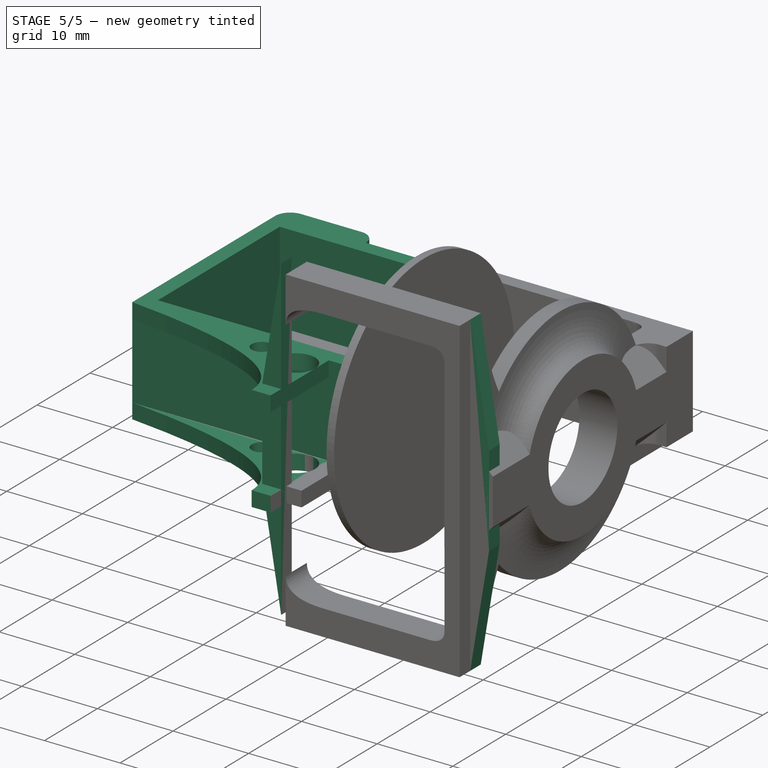
[diagram: stage 5 of 5 — iso view after this stage's code; geometry added in this stage tinted green]
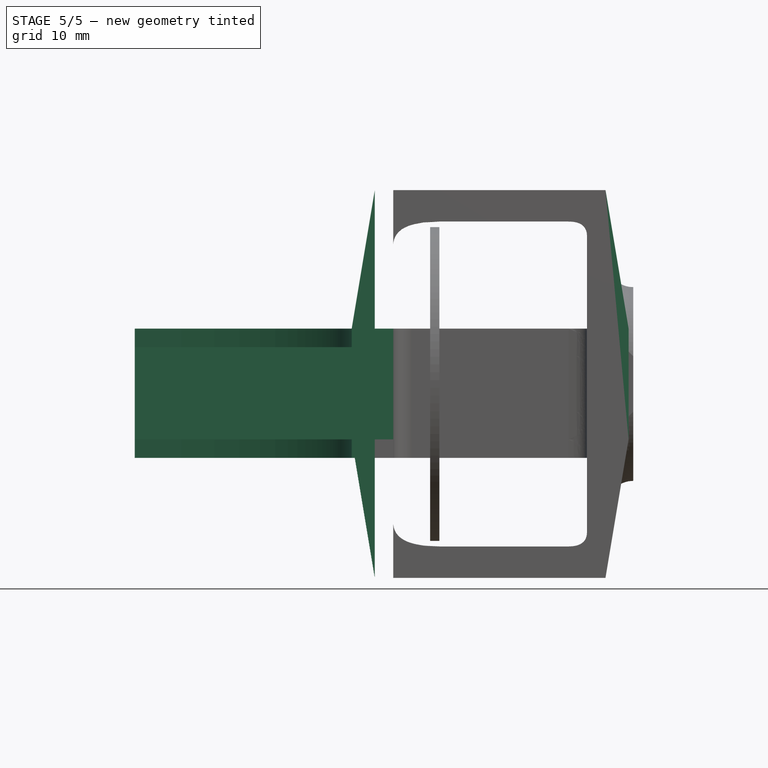
[diagram: stage 5 of 5 — front view after this stage's code; geometry added in this stage tinted green]
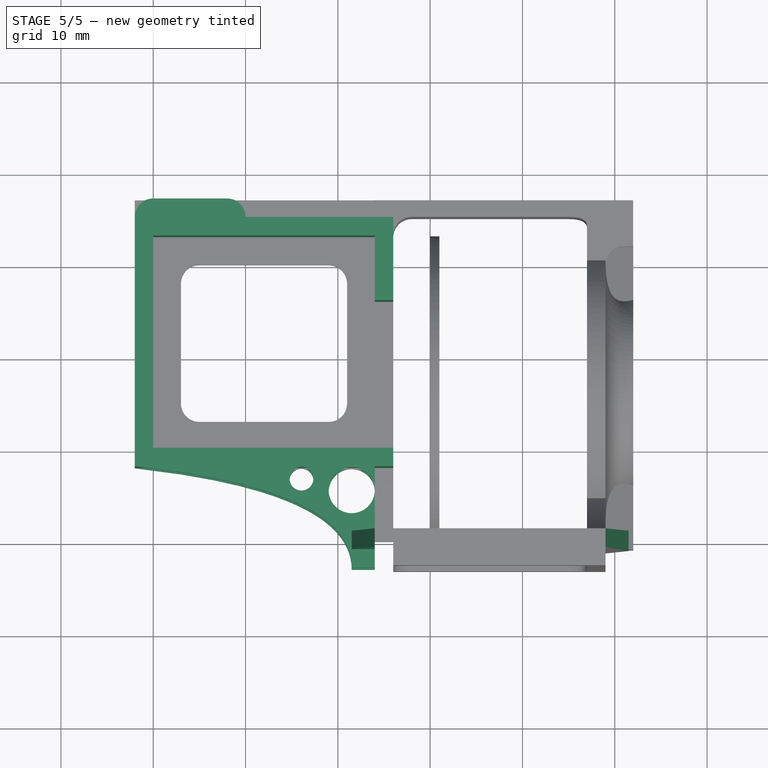
[diagram: stage 5 of 5 — top view after this stage's code; geometry added in this stage tinted green]
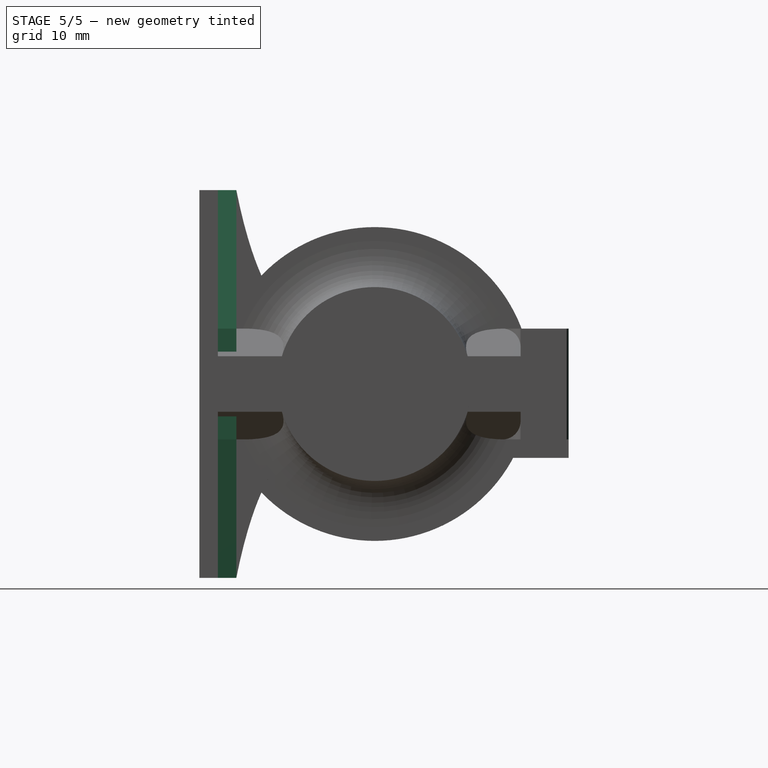
[diagram: stage 5 of 5 — right view after this stage's code; geometry added in this stage tinted green]
FEATURE [Sketcher::SketchObject] Sketch  label="servoHolder001"
  FullyConstrained = true
  sketch-geometry (13):
    g0: LineSegment StartX=0 StartY=0 StartZ=0 EndX=0 EndY=23 EndZ=0
    g1: LineSegment StartX=0 StartY=23 StartZ=0 EndX=24 EndY=23 EndZ=0
    g2: LineSegment StartX=24 StartY=23 StartZ=0 EndX=24 EndY=16 EndZ=0
    g3: LineSegment StartX=-2 StartY=-2 StartZ=0 EndX=-2 EndY=25 EndZ=0
    g4: LineSegment StartX=10 StartY=25 StartZ=0 EndX=26 EndY=25 EndZ=0
    g5: LineSegment StartX=26 StartY=25 StartZ=0 EndX=26 EndY=16 EndZ=0
    g6: LineSegment StartX=24 StartY=16 StartZ=0 EndX=26 EndY=16 EndZ=0
    g7: LineSegment StartX=0 StartY=27 StartZ=0 EndX=8 EndY=27 EndZ=0
    g8: ArcOfCircle CenterX=0 CenterY=25 CenterZ=0 NormalX=0 NormalY=0 NormalZ=1 AngleXU=0 Radius=2 StartAngle=1.5708 EndAngle=3.14159
    g9: ArcOfCircle CenterX=8 CenterY=25 CenterZ=0 NormalX=0 NormalY=0 NormalZ=1 AngleXU=0 Radius=2 StartAngle=0 EndAngle=1.5708
    g10: LineSegment StartX=26 StartY=0 StartZ=0 EndX=26 EndY=-2 EndZ=0
    g11: LineSegment StartX=26 StartY=-2 StartZ=0 EndX=-2 EndY=-2 EndZ=0
    g12: LineSegment StartX=26 StartY=0 StartZ=0 EndX=0 EndY=0 EndZ=0
  constraints (35):
    c: Coincident(g0,g-1)
    c: Vertical(g0)
    c: Distance(g0) = 23
    c: Coincident(g1,g0)
    c: Horizontal(g1)
    c: Block(g1)
    c: Block(g0)
    c: Coincident(g2,g1)
    c: Vertical(g2)
    c: Distance(g2) = 7
    c: Vertical(g3)
    c: Distance(g3) = 27
    c: Horizontal(g4)
    c: Coincident(g5,g4)
    c: Vertical(g5)
    c: Coincident(g6,g2)
    c: Horizontal(g6)
    c: Coincident(g5,g6)
    c: Horizontal(g7)
    c: Distance(g7) = 8
    c: Coincident(g8,g3)
    c: Coincident(g9,g7)
    c: Block(g9)
    c: Block(g8)
    c: PointOnObject(g4,g9)
    c: Block(g4)
    c: Vertical(g10)
    c: Distance(g10) = 2
    c: Coincident(g11,g10)
    c: Coincident(g11,g3)
    c: Horizontal(g11)
    c: Coincident(g12,g0)
    c: Horizontal(g12)
    c: Block(g12)
    c: Block(g10)
FEATURE [Part::Extrusion] Extrude  label="servoHolder"
  Base = -> Sketch
  Dir = (0,0,1)
  DirMode = 2
  FaceMakerClass = Part::FaceMakerBullseye
  LengthFwd = 12
  LengthRev = 0
  Placement = pos=(0,0,2) rot=(0,0,1;0rad)
  Solid = true
  Symmetric = false
FEATURE [Sketcher::SketchObject] Sketch006  label="pshasbbBrace"
  FullyConstrained = true
  sketch-geometry (11):
    g0: LineSegment StartX=24 StartY=-2 StartZ=0 EndX=24 EndY=-13 EndZ=0
    g1: LineSegment StartX=24 StartY=-13 StartZ=0 EndX=21.5 EndY=-13 EndZ=0
    g2: Circle CenterX=-2 CenterY=-2 CenterZ=0 NormalX=0 NormalY=0 NormalZ=1 AngleXU=0 Radius=1
    g3: Circle CenterX=21.5 CenterY=-4.6 CenterZ=0 NormalX=0 NormalY=0 NormalZ=1 AngleXU=0 Radius=1
    g4: Circle CenterX=21.5 CenterY=-13 CenterZ=0 NormalX=0 NormalY=0 NormalZ=1 AngleXU=0 Radius=1
    g5: BSplineCurve PolesCount=3 KnotsCount=2 Degree=2 IsPeriodic=0
    g6: GeomPoint X=-2 Y=-2 Z=0
    g7: GeomPoint X=21.5 Y=-13 Z=0
    g8: Circle CenterX=16.057 CenterY=-3.35 CenterZ=0 NormalX=0 NormalY=0 NormalZ=1 AngleXU=0 Radius=1.29294
    g9: LineSegment StartX=24 StartY=-2 StartZ=0 EndX=-2 EndY=-2 EndZ=0
    g10: Circle CenterX=21.5 CenterY=-4.6 CenterZ=0 NormalX=0 NormalY=0 NormalZ=1 AngleXU=0 Radius=2.5
  constraints (21):
    c: Vertical(g0)
    c: Distance(g0) = 11
    c: Coincident(g1,g0)
    c: Horizontal(g1)
    c: Distance(g1) = 2.5
    c: Weight(g2) = 1
    c: Equal(g2,g3)
    c: Equal(g2,g4)
    c: Coincident(g5,g1)
    c: InternalAlignment(g2,g5)
    c: InternalAlignment(g3,g5)
    c: InternalAlignment(g4,g5)
    c: InternalAlignment(g6,g5)
    c: InternalAlignment(g7,g5)
    c: Block(g5)
    c: Coincident(g9,g0)
    c: Coincident(g9,g5)
    c: Horizontal(g9)
    c: Block(g8)
    c: Coincident(g10,g3)
    c: Tangent(g10,g0)
FEATURE [Part::Extrusion] Extrude005  label="pshasbbBrace001"
  Base = -> Sketch006
  Dir = (0,0,1)
  DirMode = 2
  FaceMakerClass = Part::FaceMakerBullseye
  LengthFwd = 2
  LengthRev = 0
  Solid = true
  Symmetric = false
FEATURE [Sketcher::SketchObject] Sketch007  label="pshasbbReinforcement"
  FullyConstrained = true
  Placement = pos=(0,0,0) rot=(1,0,0;1.5708rad)
  sketch-geometry (4):
    g0: LineSegment StartX=0 StartY=-13 StartZ=0 EndX=0 EndY=29 EndZ=0
    g1: LineSegment StartX=-2.5 StartY=14 StartZ=0 EndX=-2.5 EndY=2 EndZ=0
    g2: LineSegment StartX=0 StartY=29 StartZ=0 EndX=-2.5 EndY=14 EndZ=0
    g3: LineSegment StartX=-2.5 StartY=2 StartZ=0 EndX=0 EndY=-13 EndZ=0
  constraints (8):
    c: Vertical(g0)
    c: Block(g0)
    c: Vertical(g1)
    c: Block(g1)
    c: Coincident(g2,g0)
    c: Coincident(g2,g1)
    c: Coincident(g3,g1)
    c: Coincident(g3,g0)
FEATURE [Part::Extrusion] Extrude006  label="pshasbbReinforcement001"
  Base = -> Sketch007
  Dir = (0,-1,-3e-16)
  DirMode = 2
  FaceMakerClass = Part::FaceMakerBullseye
  LengthFwd = 2
  LengthRev = 0
  Placement = pos=(24,-9,0) rot=(0,0,1;0rad)
  Solid = true
  Symmetric = false
FEATURE [Sketcher::SketchObject] Sketch009  label="pshasbbReinforcement003"
  FullyConstrained = true
  Placement = pos=(0,0,0) rot=(1,0,0;1.5708rad)
  sketch-geometry (4):
    g0: LineSegment StartX=0 StartY=-13 StartZ=0 EndX=0 EndY=29 EndZ=0
    g1: LineSegment StartX=-2.5 StartY=14 StartZ=0 EndX=-2.5 EndY=2 EndZ=0
    g2: LineSegment StartX=0 StartY=29 StartZ=0 EndX=-2.5 EndY=14 EndZ=0
    g3: LineSegment StartX=-2.5 StartY=2 StartZ=0 EndX=0 EndY=-13 EndZ=0
  constraints (8):
    c: Vertical(g0)
    c: Block(g0)
    c: Vertical(g1)
    c: Block(g1)
    c: Coincident(g2,g0)
    c: Coincident(g2,g1)
    c: Coincident(g3,g1)
    c: Coincident(g3,g0)
FEATURE [Part::Extrusion] Extrude008  label="pshasbbReinforcement002"
  Base = -> Sketch009
  Dir = (0,-1,-3e-16)
  DirMode = 2
  FaceMakerClass = Part::FaceMakerBullseye
  LengthFwd = 2
  LengthRev = 0
  Placement = pos=(49,-11,0) rot=(0,0,1;3.14159rad)
  Solid = true
  Symmetric = false
FEATURE [Sketcher::SketchObject] Sketch010  label="pshasbbBrace003"
  FullyConstrained = true
  sketch-geometry (11):
    g0: LineSegment StartX=24 StartY=-2 StartZ=0 EndX=24 EndY=-13 EndZ=0
    g1: LineSegment StartX=24 StartY=-13 StartZ=0 EndX=21.5 EndY=-13 EndZ=0
    g2: Circle CenterX=-2 CenterY=-2 CenterZ=0 NormalX=0 NormalY=0 NormalZ=1 AngleXU=0 Radius=1
    g3: Circle CenterX=21.5 CenterY=-4.6 CenterZ=0 NormalX=0 NormalY=0 NormalZ=1 AngleXU=0 Radius=1
    g4: Circle CenterX=21.5 CenterY=-13 CenterZ=0 NormalX=0 NormalY=0 NormalZ=1 AngleXU=0 Radius=1
    g5: BSplineCurve PolesCount=3 KnotsCount=2 Degree=2 IsPeriodic=0
    g6: GeomPoint X=-2 Y=-2 Z=0
    g7: GeomPoint X=21.5 Y=-13 Z=0
    g8: Circle CenterX=16.057 CenterY=-3.35 CenterZ=0 NormalX=0 NormalY=0 NormalZ=1 AngleXU=0 Radius=1.29294
    g9: LineSegment StartX=24 StartY=-2 StartZ=0 EndX=-2 EndY=-2 EndZ=0
    g10: Circle CenterX=21.5 CenterY=-4.6 CenterZ=0 NormalX=0 NormalY=0 NormalZ=1 AngleXU=0 Radius=2.5
  constraints (21):
    c: Vertical(g0)
    c: Distance(g0) = 11
    c: Coincident(g1,g0)
    c: Horizontal(g1)
    c: Distance(g1) = 2.5
    c: Weight(g2) = 1
    c: Equal(g2,g3)
    c: Equal(g2,g4)
    c: Coincident(g5,g1)
    c: InternalAlignment(g2,g5)
    c: InternalAlignment(g3,g5)
    c: InternalAlignment(g4,g5)
    c: InternalAlignment(g6,g5)
    c: InternalAlignment(g7,g5)
    c: Block(g5)
    c: Coincident(g9,g0)
    c: Coincident(g9,g5)
    c: Horizontal(g9)
    c: Block(g8)
    c: Coincident(g10,g3)
    c: Tangent(g10,g0)
FEATURE [Part::Extrusion] Extrude009  label="pshasbbBrace002"
  Base = -> Sketch010
  Dir = (0,0,1)
  DirMode = 2
  FaceMakerClass = Part::FaceMakerBullseye
  LengthFwd = 2
  LengthRev = 0
  Placement = pos=(0,0,12) rot=(0,0,1;0rad)
  Solid = true
  Symmetric = false
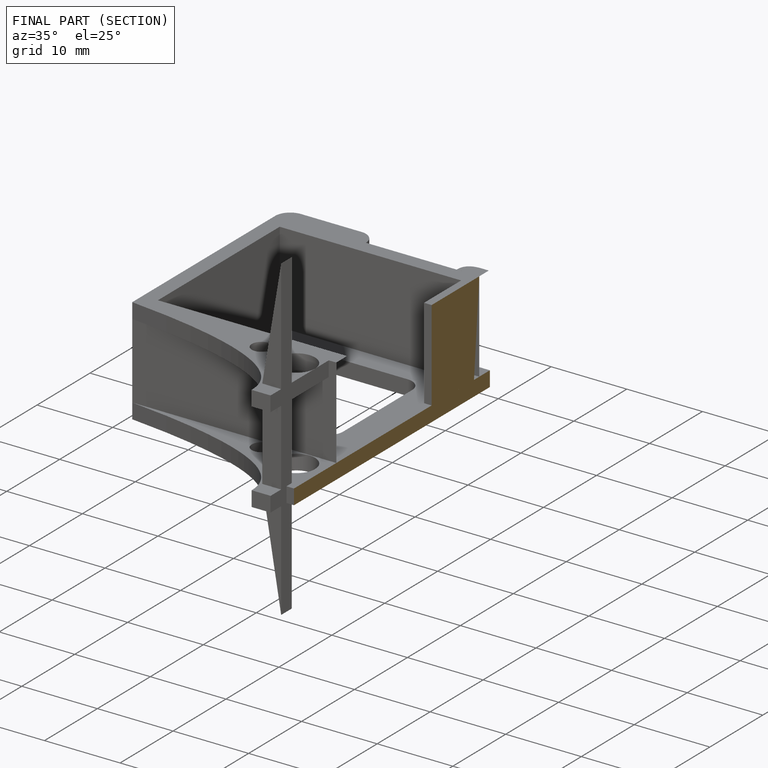
[diagram: finished part — half-section view (interior)]
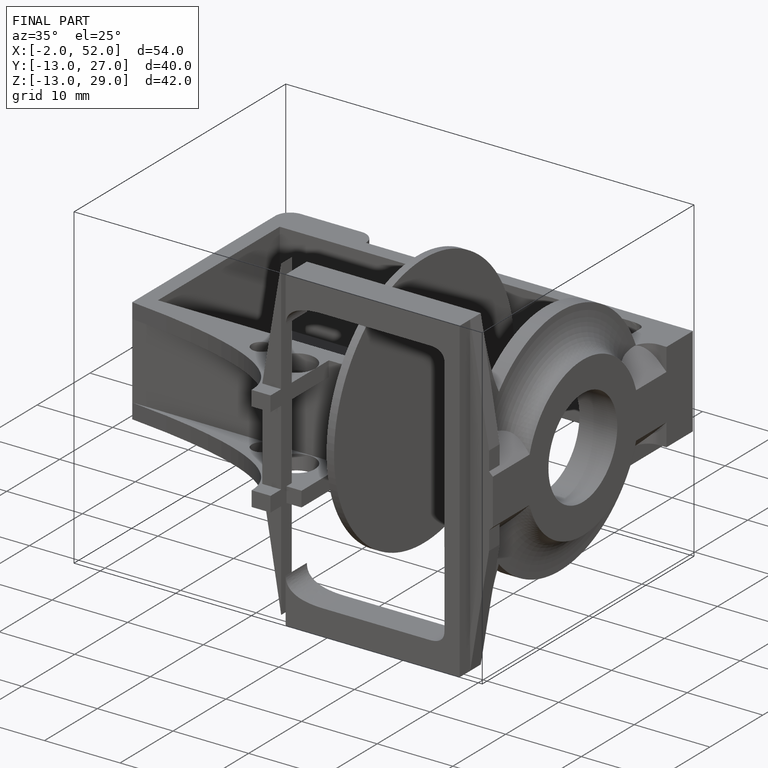
[diagram: finished part — iso view with bounding-box wireframe]
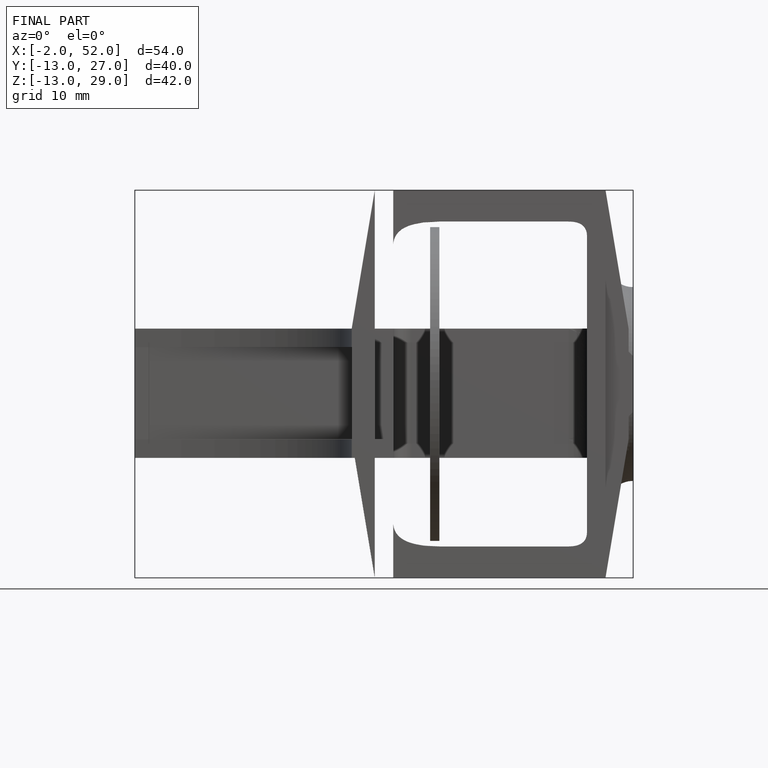
[diagram: finished part — front view with bounding-box wireframe]
